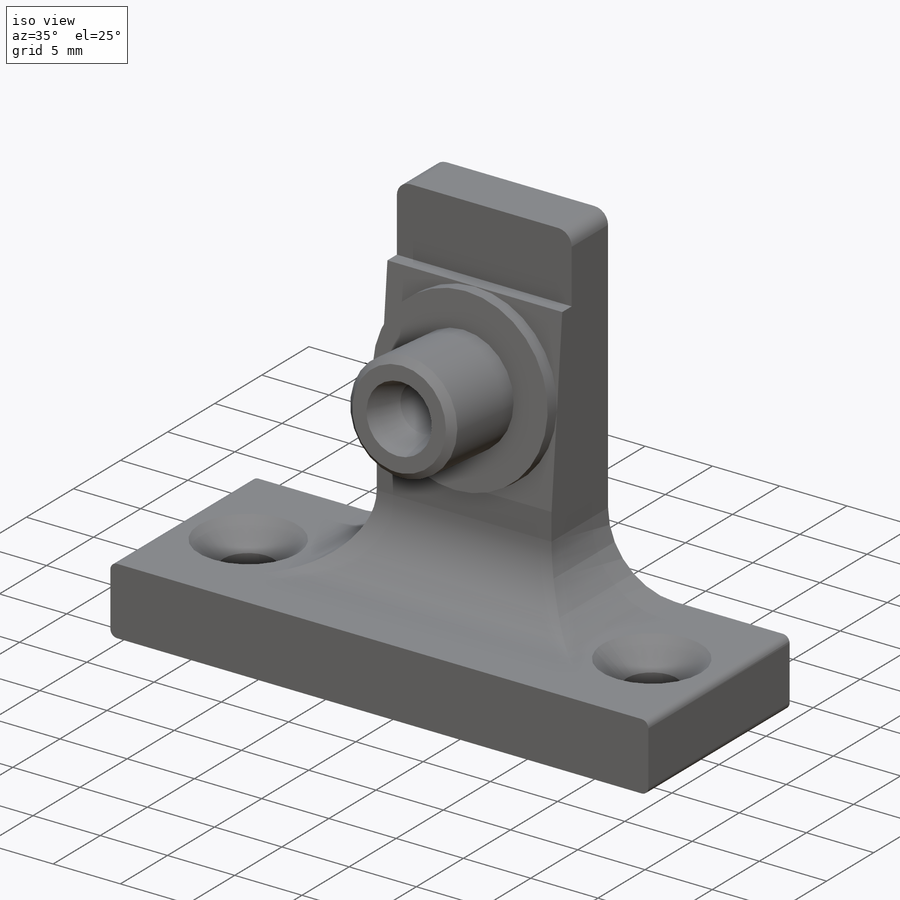
[diagram: iso view]
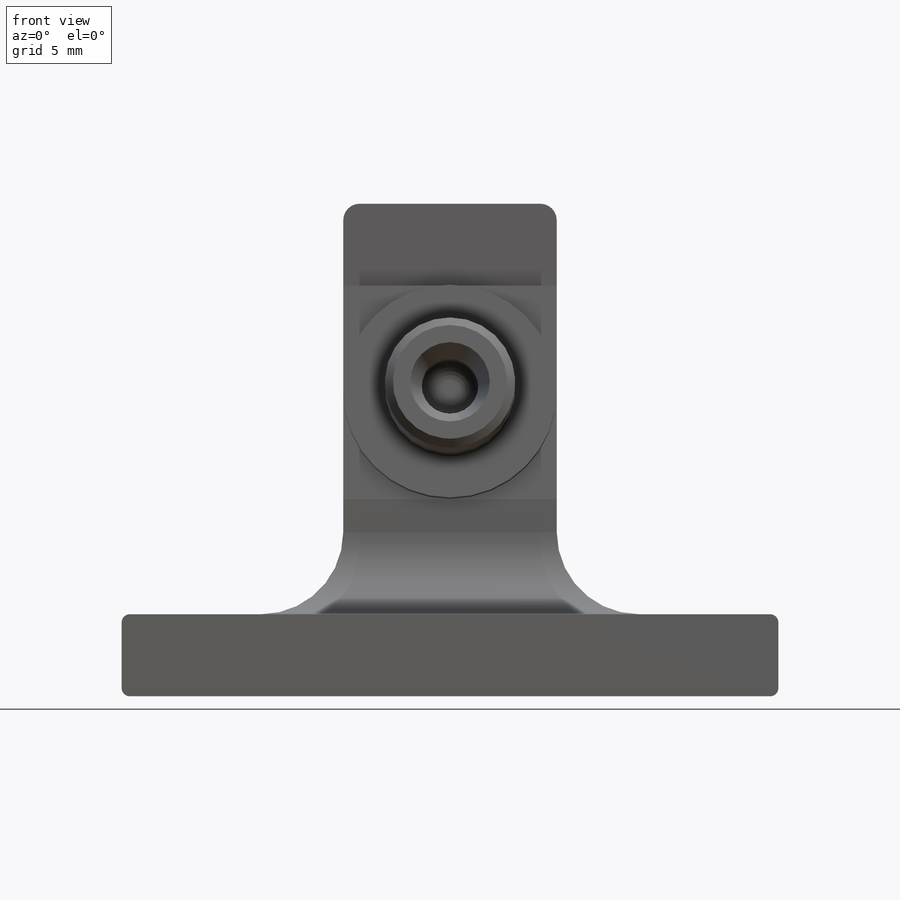
[diagram: front view]
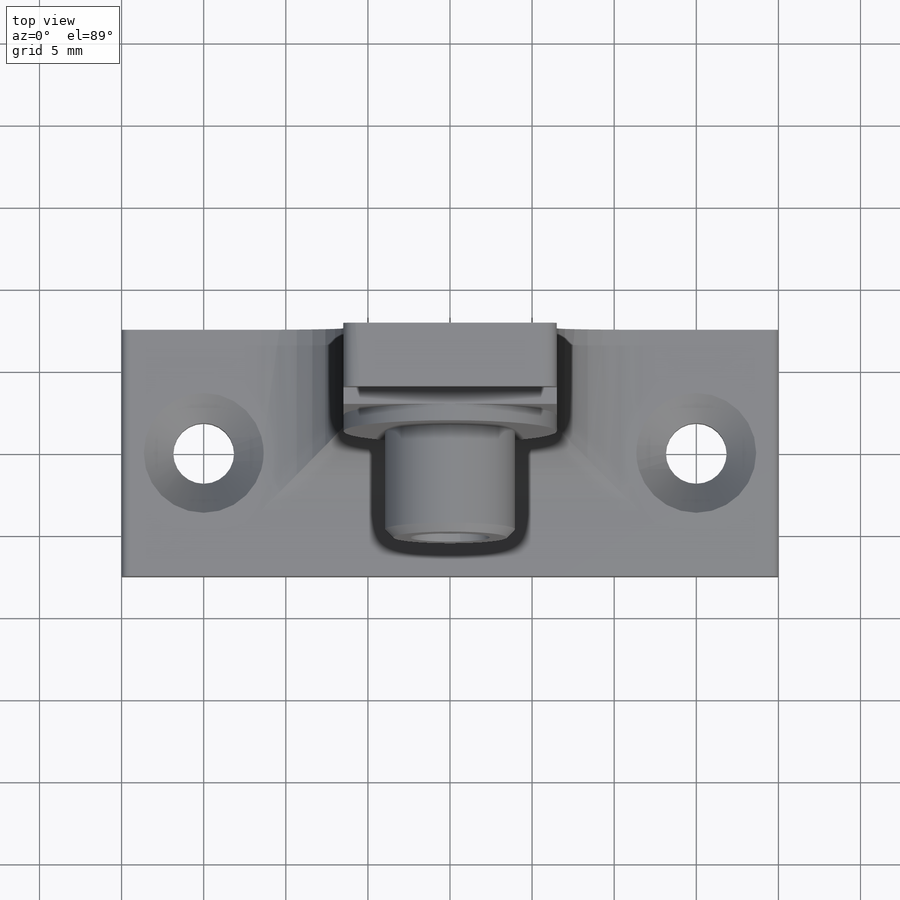
[diagram: top view]
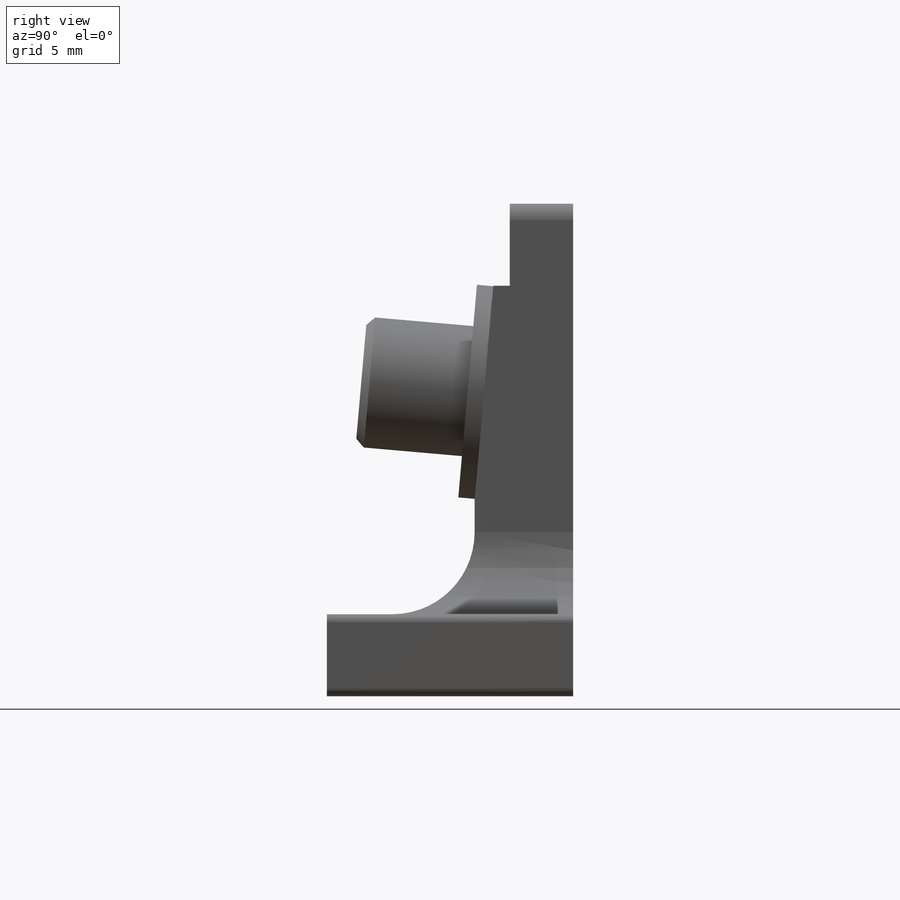
[diagram: right view]
SOLIDWORKS PART (.sldprt)
format: sldprt  version: not decoded by parser v0  size: 309,760 bytes
history: native  units: mm
features: sketch x5, extrude x5, chamfer x4, fillet x4, material x1 (+13 scaffold rows collapsed)
feature tree (32):
  scaffold x13  (default folders/planes/origin — collapsed)
  material  "Material <not specified>"
  sketch  "Sketch1"  dims[D3=3.7mm D1=40.0mm D2=15.0mm D4=15.0mm]
  extrude  "Boss-Extrude1"  Depth=5mm
  chamfer  "Chamfer1"  Distance=1.8mm Angle=45deg
  sketch  "Sketch2"  dims[D1=13.0mm D2=6.0mm D3=3.0mm]
  extrude  "Boss-Extrude2"  Depth=20mm
  chamfer  "Chamfer2"  Distance=13mm Angle=5deg
  sketch  "Sketch3"  dims[c1.D1=7.95mm c1.D2=3.45mm c2.D1=4.5mm]
  extrude  "Boss-Extrude3"  Depth=7.5mm
  sketch  "Sketch4"  dims[D1=3.0mm D2=1.0mm]
  extrude  "Boss-Extrude4"  Depth=5mm
  sketch  "Sketch5"  dims[D1=~4.999669mm]
  extrude  "Boss-Extrude5"  Depth=1mm
  chamfer  "Chamfer4"  Distance=0.5mm Angle=45deg
  fillet  "Fillet2"  Radius=1mm
  fillet  "Fillet3"  Radius=5mm
  fillet  "Fillet4"  Radius=1mm
  fillet  "Fillet5"  Radius=0.5mm
  chamfer  "Chamfer5"  Distance=0.7mm Angle=75deg
decode coverage: 18 of 18 modeling features carry decoded parameters
note: ~ marks probable driven/reference dimensions
note: suppression state not decoded; provenance and decode notes live in map.json
